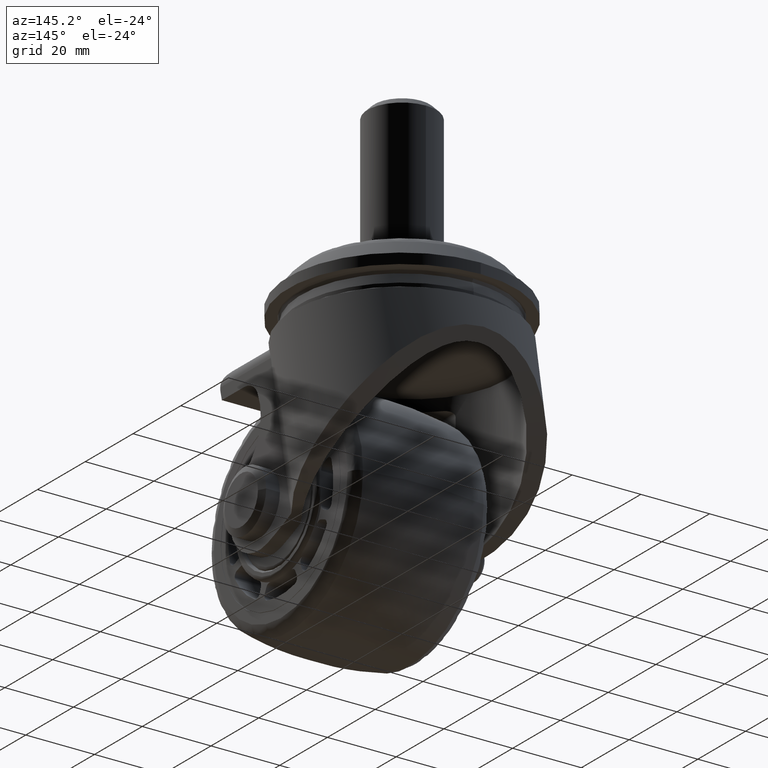
[diagram: clean part render]
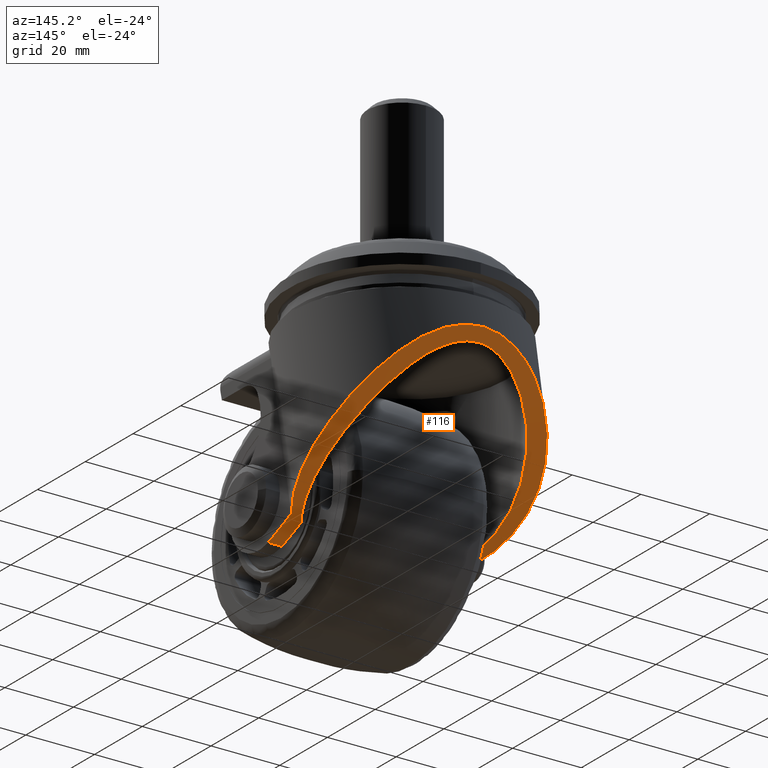
[diagram: same view with one face highlighted and labeled with its STEP entity id]
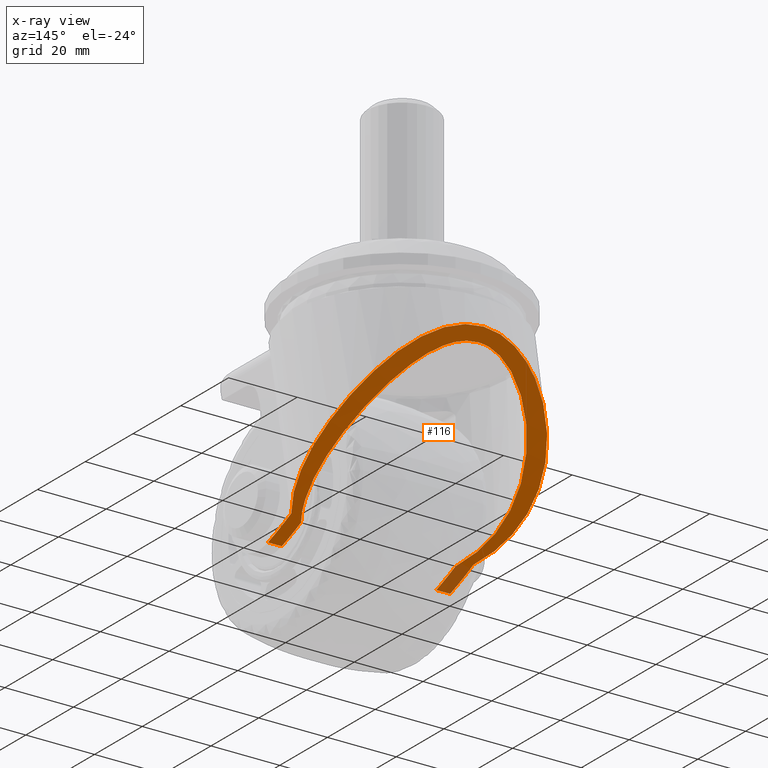
[diagram: x-ray of the same camera — body ghosted, the highlighted face saturated]
A machine part, auxiliary view. The second image highlights one B-rep face of the part: STEP entity #116.
The next image is the same camera in x-ray: the body ghosted, the highlighted face saturated — about 4% of this face is hidden behind the body in this view.
In plain terms, the highlighted cylindrical surface (partial cylindrical patch) has radius 95 mm, axis along (1, 0, 0).
Its self-contained STEP definition (entity closure, byte-faithful):
#116=ADVANCED_FACE('',(#363),#362,.T.);
#362=CYLINDRICAL_SURFACE('',#2478,9.50000000000E+01);
#363=FACE_OUTER_BOUND('',#2479,.T.);
#2475=CARTESIAN_POINT('',(3.70000000000E+01,2.08130000000E+01,4.94970000000E+01));
#2476=DIRECTION('',(1.00000000000E+00,-0.00000000000E+00,-0.00000000000E+00));
#2477=DIRECTION('',(-0.00000000000E+00,-0.00000000000E+00,-1.00000000000E+00));
#2478=AXIS2_PLACEMENT_3D('',#2475,#2476,#2477);
#2479=EDGE_LOOP('',(#4270,#4271,#4272,#4273,#4274,#4275,#4276,#4277,#4278));
#4270=ORIENTED_EDGE('',*,*,#5343,.F.);
#4271=ORIENTED_EDGE('',*,*,#5344,.F.);
#4272=ORIENTED_EDGE('',*,*,#5345,.T.);
#4273=ORIENTED_EDGE('',*,*,#5346,.T.);
#4274=ORIENTED_EDGE('',*,*,#5347,.F.);
#4275=ORIENTED_EDGE('',*,*,#5348,.F.);
#4276=ORIENTED_EDGE('',*,*,#5349,.F.);
#4277=ORIENTED_EDGE('',*,*,#5350,.T.);
#4278=ORIENTED_EDGE('',*,*,#5351,.T.);
#5343=EDGE_CURVE('',#6005,#6006,#6007,.T.);
#5344=EDGE_CURVE('',#6013,#6005,#6014,.T.);
#5345=EDGE_CURVE('',#6013,#6020,#6021,.T.);
#5346=EDGE_CURVE('',#6020,#6027,#6028,.T.);
#5347=EDGE_CURVE('',#6034,#6027,#6035,.T.);
#5348=EDGE_CURVE('',#6041,#6034,#6042,.T.);
#5349=EDGE_CURVE('',#6048,#6041,#6049,.T.);
#5350=EDGE_CURVE('',#6048,#6055,#6056,.T.);
#5351=EDGE_CURVE('',#6055,#6006,#6062,.T.);
#6005=VERTEX_POINT('',#9553);
#6006=VERTEX_POINT('',#9554);
#6007=(BOUNDED_CURVE() B_SPLINE_CURVE(3,(#9555,#9556,#9557,#9558,#9559,#9560,#9561,#9562,#9563,#9564,#9565,#9566,#9567,#9568,#9569,#9570,#9571,#9572,#9573,#9574,#9575,#9576,#9577,#9578,#9579,#9580,#9581,#9582,#9583,#9584,#9585,#9586,#9587,#9588,#9589,#9590,#9591,#9592,#9593,#9594,#9595,#9596,#9597,#9598,#9599,#9600),.UNSPECIFIED.,.F.,.F.) B_SPLINE_CURVE_WITH_KNOTS((4,2,2,2,2,2,2,2,2,2,2,2,2,2,2,2,2,2,2,2,2,2,4),(8.19537117906E-02,8.41274817485E-02,8.52191444382E-02,8.63108071279E-02,9.06774578865E-02,9.28607832658E-02,9.50441086451E-02,9.94107594038E-02,1.01594084783E-01,1.03777410162E-01,1.08144060921E-01,1.12510711680E-01,1.14694037059E-01,1.16877362438E-01,1.25610663956E-01,1.29977314714E-01,1.32160640093E-01,1.34343965473E-01,1.38710616231E-01,1.43077266990E-01,1.45260592369E-01,1.47443917749E-01,1.51810568507E-01),.UNSPECIFIED.) CURVE() GEOMETRIC_REPRESENTATION_ITEM() RATIONAL_B_SPLINE_CURVE((1.00000000000E+00,1.00000000000E+00,1.00000000000E+00,1.00000000000E+00,1.00000000000E+00,1.00000000000E+00,1.00000000000E+00,1.00000000000E+00,1.00000000000E+00,1.00000000000E+00,1.00000000000E+00,1.00000000000E+00,1.00000000000E+00,1.00000000000E+00,1.00000000000E+00,1.00000000000E+00,1.00000000000E+00,1.00000000000E+00,1.00000000000E+00,1.00000000000E+00,1.00000000000E+00,1.00000000000E+00,1.00000000000E+00,1.00000000000E+00,1.00000000000E+00,1.00000000000E+00,1.00000000000E+00,1.00000000000E+00,1.00000000000E+00,1.00000000000E+00,1.00000000000E+00,1.00000000000E+00,1.00000000000E+00,1.00000000000E+00,1.00000000000E+00,1.00000000000E+00,1.00000000000E+00,1.00000000000E+00,1.00000000000E+00,1.00000000000E+00,1.00000000000E+00,1.00000000000E+00,1.00000000000E+00,1.00000000000E+00,1.00000000000E+00,1.00000000000E+00)) REPRESENTATION_ITEM('') );
#6013=VERTEX_POINT('',#9601);
#6014=(BOUNDED_CURVE() B_SPLINE_CURVE(3,(#9602,#9603,#9604,#9605,#9606,#9607,#9608,#9609,#9610,#9611,#9612,#9613,#9614,#9615,#9616),.UNSPECIFIED.,.F.,.F.) B_SPLINE_CURVE_WITH_KNOTS((4,1,1,1,1,1,1,1,1,1,1,1,4),(0.00000000000E+00,7.76525669866E-02,1.64369601471E-01,2.51379599856E-01,3.02562471461E-01,4.21601785054E-01,4.95559990857E-01,6.48452473978E-01,7.48669312098E-01,8.08179493794E-01,8.52788639289E-01,9.20970964297E-01,1.00000000000E+00),.UNSPECIFIED.) CURVE() GEOMETRIC_REPRESENTATION_ITEM() RATIONAL_B_SPLINE_CURVE((1.00000000000E+00,1.00000000000E+00,1.00000000000E+00,1.00000000000E+00,1.00000000000E+00,1.00000000000E+00,1.00000000000E+00,1.00000000000E+00,1.00000000000E+00,1.00000000000E+00,1.00000000000E+00,1.00000000000E+00,1.00000000000E+00,1.00000000000E+00,1.00000000000E+00)) REPRESENTATION_ITEM('') );
#6020=VERTEX_POINT('',#9617);
#6021=CIRCLE('',#9621,9.50000000000E+01);
#6027=VERTEX_POINT('',#9622);
#6028=LINE('',#9623,#9624);
#6034=VERTEX_POINT('',#9626);
#6035=CIRCLE('',#9630,9.50000000000E+01);
#6041=VERTEX_POINT('',#9631);
#6042=(BOUNDED_CURVE() B_SPLINE_CURVE(3,(#9632,#9633,#9634,#9635,#9636,#9637,#9638,#9639,#9640,#9641,#9642,#9643,#9644,#9645,#9646,#9647,#9648,#9649,#9650,#9651,#9652,#9653,#9654,#9655,#9656,#9657,#9658,#9659,#9660,#9661,#9662,#9663,#9664,#9665,#9666,#9667,#9668,#9669,#9670,#9671,#9672,#9673,#9674,#9675,#9676,#9677,#9678,#9679,#9680,#9681,#9682,#9683,#9684,#9685,#9686,#9687,#9688,#9689,#9690,#9691,#9692,#9693,#9694,#9695,#9696,#9697,#9698,#9699,#9700,#9701,#9702,#9703,#9704,#9705,#9706,#9707,#9708,#9709,#9710,#9711,#9712,#9713,#9714,#9715,#9716,#9717,#9718,#9719,#9720,#9721,#9722,#9723,#9724,#9725,#9726,#9727),.UNSPECIFIED.,.F.,.F.) B_SPLINE_CURVE_WITH_KNOTS((4,2,2,2,2,2,2,2,2,2,2,2,2,2,2,2,2,2,2,2,2,2,2,2,2,2,2,2,2,2,2,2,2,2,2,2,2,2,2,2,2,2,2,2,2,2,2,4),(-7.53326061546E-02,-7.29757780355E-02,-7.06189499165E-02,-6.59052936784E-02,-6.35484655593E-02,-6.11916374403E-02,-5.64779812022E-02,-5.41211530832E-02,-5.17643249641E-02,-4.70506687260E-02,-4.23370124880E-02,-3.99801843689E-02,-3.76233562499E-02,-3.29097000118E-02,-2.81960437737E-02,-2.58392156547E-02,-2.34823875356E-02,-1.87687312975E-02,-1.64119031785E-02,-1.40550750594E-02,-9.34141882135E-03,-6.98459070231E-03,-5.80617664279E-03,-4.62776258326E-03,-2.27093446422E-03,8.58936548219E-05,4.79954989291E-03,7.15637801195E-03,9.51320613100E-03,1.42268623691E-02,1.65836904881E-02,1.89405186072E-02,2.36541748453E-02,2.83678310833E-02,3.07246592024E-02,3.30814873214E-02,3.77951435595E-02,4.25087997976E-02,4.48656279166E-02,4.72224560357E-02,5.19361122738E-02,5.66497685119E-02,5.90065966309E-02,6.13634247499E-02,6.60770809880E-02,6.84339091071E-02,7.07907372261E-02,7.55043934642E-02),.UNSPECIFIED.) CURVE() GEOMETRIC_REPRESENTATION_ITEM() RATIONAL_B_SPLINE_CURVE((1.00000000000E+00,1.00000000000E+00,1.00000000000E+00,1.00000000000E+00,1.00000000000E+00,1.00000000000E+00,1.00000000000E+00,1.00000000000E+00,1.00000000000E+00,1.00000000000E+00,1.00000000000E+00,1.00000000000E+00,1.00000000000E+00,1.00000000000E+00,1.00000000000E+00,1.00000000000E+00,1.00000000000E+00,1.00000000000E+00,1.00000000000E+00,1.00000000000E+00,1.00000000000E+00,1.00000000000E+00,1.00000000000E+00,1.00000000000E+00,1.00000000000E+00,1.00000000000E+00,1.00000000000E+00,1.00000000000E+00,1.00000000000E+00,1.00000000000E+00,1.00000000000E+00,1.00000000000E+00,1.00000000000E+00,1.00000000000E+00,1.00000000000E+00,1.00000000000E+00,1.00000000000E+00,1.00000000000E+00,1.00000000000E+00,1.00000000000E+00,1.00000000000E+00,1.00000000000E+00,1.00000000000E+00,1.00000000000E+00,1.00000000000E+00,1.00000000000E+00,1.00000000000E+00,1.00000000000E+00,1.00000000000E+00,1.00000000000E+00,1.00000000000E+00,1.00000000000E+00,1.00000000000E+00,1.00000000000E+00,1.00000000000E+00,1.00000000000E+00,1.00000000000E+00,1.00000000000E+00,1.00000000000E+00,1.00000000000E+00,1.00000000000E+00,1.00000000000E+00,1.00000000000E+00,1.00000000000E+00,1.00000000000E+00,1.00000000000E+00,1.00000000000E+00,1.00000000000E+00,1.00000000000E+00,1.00000000000E+00,1.00000000000E+00,1.00000000000E+00,1.00000000000E+00,1.00000000000E+00,1.00000000000E+00,1.00000000000E+00,1.00000000000E+00,1.00000000000E+00,1.00000000000E+00,1.00000000000E+00,1.00000000000E+00,1.00000000000E+00,1.00000000000E+00,1.00000000000E+00,1.00000000000E+00,1.00000000000E+00,1.00000000000E+00,1.00000000000E+00,1.00000000000E+00,1.00000000000E+00,1.00000000000E+00,1.00000000000E+00,1.00000000000E+00,1.00000000000E+00,1.00000000000E+00,1.00000000000E+00)) REPRESENTATION_ITEM('') );
#6048=VERTEX_POINT('',#9728);
#6049=CIRCLE('',#9732,9.50000000000E+01);
#6055=VERTEX_POINT('',#9733);
#6056=LINE('',#9734,#9735);
#6062=CIRCLE('',#9740,9.50000000000E+01);
#9553=CARTESIAN_POINT('',(5.74233655132E-08,-2.80054315004E+01,-3.19999995224E+01));
#9554=CARTESIAN_POINT('',(2.25000000000E+01,-6.55527449560E+01,9.92481155660E+00));
#9555=CARTESIAN_POINT('',(5.74233655132E-08,-2.80054315004E+01,-3.19999995224E+01));
#9556=CARTESIAN_POINT('',(7.39288560048E-01,-2.80058076081E+01,-3.19997730890E+01));
#9557=CARTESIAN_POINT('',(1.46607875171E+00,-2.80557461795E+01,-3.19699175471E+01));
#9558=CARTESIAN_POINT('',(2.55022035450E+00,-2.82023471807E+01,-3.18817379645E+01));
#9559=CARTESIAN_POINT('',(2.91059338669E+00,-2.82631607981E+01,-3.18451024096E+01));
#9560=CARTESIAN_POINT('',(3.62935523388E+00,-2.84082194051E+01,-3.17574075320E+01));
#9561=CARTESIAN_POINT('',(3.98895468368E+00,-2.84928617904E+01,-3.17061047036E+01));
#9562=CARTESIAN_POINT('',(5.75306546768E+00,-2.89649837936E+01,-3.14186836212E+01));
#9563=CARTESIAN_POINT('',(7.07658666360E+00,-2.94995587557E+01,-3.10897711892E+01));
#9564=CARTESIAN_POINT('',(8.96623531064E+00,-3.04647356370E+01,-3.04763652084E+01));
#9565=CARTESIAN_POINT('',(9.58176946282E+00,-3.08155037890E+01,-3.02506656105E+01));
#9566=CARTESIAN_POINT('',(1.07628397132E+01,-3.15500396332E+01,-2.97702987693E+01));
#9567=CARTESIAN_POINT('',(1.13312510187E+01,-3.19350826938E+01,-2.95148453998E+01));
#9568=CARTESIAN_POINT('',(1.29807107677E+01,-3.31326377134E+01,-2.87065545044E+01));
#9569=CARTESIAN_POINT('',(1.40066195266E+01,-3.39869880461E+01,-2.81121122195E+01));
#9570=CARTESIAN_POINT('',(1.54595715752E+01,-3.53253720107E+01,-2.71436317519E+01));
#9571=CARTESIAN_POINT('',(1.59302514673E+01,-3.57820480417E+01,-2.68072308842E+01));
#9572=CARTESIAN_POINT('',(1.68409534618E+01,-3.67077424923E+01,-2.61118572643E+01));
#9573=CARTESIAN_POINT('',(1.72792142588E+01,-3.71748677658E+01,-2.57543335557E+01));
#9574=CARTESIAN_POINT('',(1.85477632712E+01,-3.85858409625E+01,-2.46528599599E+01));
#9575=CARTESIAN_POINT('',(1.93321757595E+01,-3.95391177414E+01,-2.38801218651E+01));
#9576=CARTESIAN_POINT('',(2.07934730041E+01,-4.14594877500E+01,-2.22575636074E+01));
#9577=CARTESIAN_POINT('',(2.14702169576E+01,-4.24266670050E+01,-2.14077212825E+01));
#9578=CARTESIAN_POINT('',(2.24080764664E+01,-4.38828060987E+01,-2.00722922129E+01));
#9579=CARTESIAN_POINT('',(2.27077538281E+01,-4.43691086558E+01,-1.96170130268E+01));
#9580=CARTESIAN_POINT('',(2.32810867900E+01,-4.53429862977E+01,-1.86853992132E+01));
#9581=CARTESIAN_POINT('',(2.35551908863E+01,-4.58314104517E+01,-1.82082149003E+01));
#9582=CARTESIAN_POINT('',(2.48540627796E+01,-4.82660219876E+01,-1.57767759562E+01));
#9583=CARTESIAN_POINT('',(2.56530067018E+01,-5.01593509986E+01,-1.37173198610E+01));
#9584=CARTESIAN_POINT('',(2.64700963604E+01,-5.29060923465E+01,-1.04406895955E+01));
#9585=CARTESIAN_POINT('',(2.66781095183E+01,-5.38062050800E+01,-9.31707791735E+00));
#9586=CARTESIAN_POINT('',(2.68827069108E+01,-5.51321943142E+01,-7.58064748643E+00));
#9587=CARTESIAN_POINT('',(2.69329388093E+01,-5.55701632116E+01,-6.99331940133E+00));
#9588=CARTESIAN_POINT('',(2.69947277930E+01,-5.64379134101E+01,-5.80074123391E+00));
#9589=CARTESIAN_POINT('',(2.70059716990E+01,-5.68637161744E+01,-5.20094012156E+00));
#9590=CARTESIAN_POINT('',(2.69791052384E+01,-5.81154211561E+01,-3.39394336961E+00));
#9591=CARTESIAN_POINT('',(2.68807312352E+01,-5.89164478140E+01,-2.17802379908E+00));
#9592=CARTESIAN_POINT('',(2.65089717685E+01,-6.04529675495E+01,2.73677767489E-01));
#9593=CARTESIAN_POINT('',(2.62357244081E+01,-6.11884601072E+01,1.50947755655E+00));
#9594=CARTESIAN_POINT('',(2.56763279910E+01,-6.22430723190E+01,3.37542919594E+00));
#9595=CARTESIAN_POINT('',(2.54658360756E+01,-6.25842393075E+01,3.99554455731E+00));
#9596=CARTESIAN_POINT('',(2.49999148361E+01,-6.32403284977E+01,5.21924102360E+00));
#9597=CARTESIAN_POINT('',(2.47439530865E+01,-6.35562861233E+01,5.82464757267E+00));
#9598=CARTESIAN_POINT('',(2.39056742234E+01,-6.44695736716E+01,7.61996741714E+00));
#9599=CARTESIAN_POINT('',(2.32533200138E+01,-6.50323875829E+01,8.78913890526E+00));
#9600=CARTESIAN_POINT('',(2.25000000000E+01,-6.55527449560E+01,9.92481155660E+00));
#9601=CARTESIAN_POINT('',(-2.24999997488E+01,-6.55527434823E+01,9.92480871910E+00));
#9602=CARTESIAN_POINT('',(-2.24999997488E+01,-6.55527434823E+01,9.92480871910E+00));
#9603=CARTESIAN_POINT('',(-2.34379741488E+01,-6.49057165338E+01,8.51130127545E+00));
#9604=CARTESIAN_POINT('',(-2.51054477286E+01,-6.33816288626E+01,5.38291420453E+00));
#9605=CARTESIAN_POINT('',(-2.66296532549E+01,-6.05892996548E+01,3.95799216465E-01));
#9606=CARTESIAN_POINT('',(-2.70818734185E+01,-5.77269943027E+01,-4.02379538753E+00));
#9607=CARTESIAN_POINT('',(-2.68680148876E+01,-5.42037918559E+01,-8.89774112942E+00));
#9608=CARTESIAN_POINT('',(-2.58775670544E+01,-5.05995632542E+01,-1.32706959900E+01));
#9609=CARTESIAN_POINT('',(-2.34289472863E+01,-4.52955299246E+01,-1.88716731376E+01));
#9610=CARTESIAN_POINT('',(-2.00427197139E+01,-4.01361493940E+01,-2.35060460253E+01));
#9611=CARTESIAN_POINT('',(-1.57186448035E+01,-3.54272669172E+01,-2.71060359113E+01));
#9612=CARTESIAN_POINT('',(-1.23694484298E+01,-3.26193128777E+01,-2.90648552235E+01));
#9613=CARTESIAN_POINT('',(-9.22333888362E+00,-3.05141706175E+01,-3.04551157657E+01));
#9614=CARTESIAN_POINT('',(-5.27677939570E+00,-2.86267431809E+01,-3.16324587016E+01));
#9615=CARTESIAN_POINT('',(-1.85205459732E+00,-2.79999477601E+01,-3.20024648868E+01));
#9616=CARTESIAN_POINT('',(5.74233655132E-08,-2.80054315004E+01,-3.19999995224E+01));
#9617=CARTESIAN_POINT('',(-2.25000000000E+01,-6.88081607692E+01,1.79843431398E+01));
#9618=CARTESIAN_POINT('',(-2.25000000000E+01,2.08130000000E+01,4.94970000000E+01));
#9619=DIRECTION('',(-1.00000000000E+00,-0.00000000000E+00,-0.00000000000E+00));
#9620=DIRECTION('',(-0.00000000000E+00,-0.00000000000E+00,1.00000000000E+00));
#9621=AXIS2_PLACEMENT_3D('',#9618,#9619,#9620);
#9622=CARTESIAN_POINT('',(-2.65000000000E+01,-6.88081607692E+01,1.79843431398E+01));
#9623=CARTESIAN_POINT('',(-2.25000000000E+01,-6.88081607692E+01,1.79843431398E+01));
#9624=VECTOR('',#9625,4.00000000000E+00);
#9625=DIRECTION('',(-1.00000000000E+00,0.00000000000E+00,0.00000000000E+00));
#9626=CARTESIAN_POINT('',(-2.65000000000E+01,-6.47714572825E+01,8.26229772553E+00));
#9627=CARTESIAN_POINT('',(-2.65000000000E+01,2.08130000000E+01,4.94970000000E+01));
#9628=DIRECTION('',(-1.00000000000E+00,-0.00000000000E+00,-0.00000000000E+00));
#9629=DIRECTION('',(-0.00000000000E+00,-0.00000000000E+00,1.00000000000E+00));
#9630=AXIS2_PLACEMENT_3D('',#9627,#9628,#9629);
#9631=CARTESIAN_POINT('',(2.65000000000E+01,-6.47714572825E+01,8.26229772553E+00));
#9632=CARTESIAN_POINT('',(2.65000000000E+01,-6.47714572825E+01,8.26229772553E+00));
#9633=CARTESIAN_POINT('',(2.69243488000E+01,-6.44816910674E+01,7.66087506723E+00));
#9634=CARTESIAN_POINT('',(2.73261332012E+01,-6.41770343502E+01,7.04480663859E+00));
#9635=CARTESIAN_POINT('',(2.80794765510E+01,-6.35391736050E+01,5.79110259304E+00));
#9636=CARTESIAN_POINT('',(2.84277184076E+01,-6.32089107389E+01,5.15920320056E+00));
#9637=CARTESIAN_POINT('',(2.93910011064E+01,-6.21830848328E+01,3.25052187028E+00));
#9638=CARTESIAN_POINT('',(2.99249327369E+01,-6.14525519521E+01,1.96085360958E+00));
#9639=CARTESIAN_POINT('',(3.05718184254E+01,-6.02814751305E+01,6.97407336206E-03));
#9640=CARTESIAN_POINT('',(3.07616902861E+01,-5.98785537847E+01,-6.47575138554E-01));
#9641=CARTESIAN_POINT('',(3.10903287655E+01,-5.90464818012E+01,-1.96238626195E+00));
#9642=CARTESIAN_POINT('',(3.12288709125E+01,-5.86171146591E+01,-2.62280103910E+00));
#9643=CARTESIAN_POINT('',(3.15639334757E+01,-5.73083201564E+01,-4.58189086763E+00));
#9644=CARTESIAN_POINT('',(3.16830581621E+01,-5.64019387611E+01,-5.86853097045E+00));
#9645=CARTESIAN_POINT('',(3.17184367500E+01,-5.49912711492E+01,-7.76847539677E+00));
#9646=CARTESIAN_POINT('',(3.17062517704E+01,-5.45125278179E+01,-8.39678870015E+00));
#9647=CARTESIAN_POINT('',(3.16350993813E+01,-5.35378861109E+01,-9.64327092954E+00));
#9648=CARTESIAN_POINT('',(3.15759783445E+01,-5.30410823955E+01,-1.02625361064E+01));
#9649=CARTESIAN_POINT('',(3.13303134792E+01,-5.15307110510E+01,-1.20976267126E+01));
#9650=CARTESIAN_POINT('',(3.10779559064E+01,-5.05080289082E+01,-1.32779016028E+01));
#9651=CARTESIAN_POINT('',(3.04121616592E+01,-4.84332686977E+01,-1.55593733020E+01));
#9652=CARTESIAN_POINT('',(2.99986581518E+01,-4.73811829606E+01,-1.66605414909E+01));
#9653=CARTESIAN_POINT('',(2.92620544966E+01,-4.57831332522E+01,-1.82563892680E+01));
#9654=CARTESIAN_POINT('',(2.89967213404E+01,-4.52465030153E+01,-1.87796053860E+01));
#9655=CARTESIAN_POINT('',(2.84284691042E+01,-4.41697783495E+01,-1.98051738450E+01));
#9656=CARTESIAN_POINT('',(2.81271618792E+01,-4.36326496718E+01,-2.03047361723E+01));
#9657=CARTESIAN_POINT('',(2.71731500872E+01,-4.20256901899E+01,-2.17658623642E+01));
#9658=CARTESIAN_POINT('',(2.64706373922E+01,-4.09601857531E+01,-2.26899874215E+01));
#9659=CARTESIAN_POINT('',(2.49333982422E+01,-3.88468191934E+01,-2.44461782174E+01));
#9660=CARTESIAN_POINT('',(2.40987325240E+01,-3.77989033912E+01,-2.52782320691E+01));
#9661=CARTESIAN_POINT('',(2.27408736741E+01,-3.62476155071E+01,-2.64602827021E+01));
#9662=CARTESIAN_POINT('',(2.22692585364E+01,-3.57326843093E+01,-2.68442089008E+01));
#9663=CARTESIAN_POINT('',(2.12947629331E+01,-3.47182088242E+01,-2.75852900345E+01));
#9664=CARTESIAN_POINT('',(2.07928523840E+01,-3.42195383905E+01,-2.79418573958E+01));
#9665=CARTESIAN_POINT('',(1.92414631445E+01,-3.27521019942E+01,-2.89708756831E+01));
#9666=CARTESIAN_POINT('',(1.81467636686E+01,-3.18115260374E+01,-2.96028659103E+01));
#9667=CARTESIAN_POINT('',(1.64006405546E+01,-3.04744444919E+01,-3.04709962198E+01));
#9668=CARTESIAN_POINT('',(1.58011556589E+01,-3.00411328957E+01,-3.07470116478E+01));
#9669=CARTESIAN_POINT('',(1.45635200645E+01,-2.92035202207E+01,-3.12717559822E+01));
#9670=CARTESIAN_POINT('',(1.39235881377E+01,-2.87981635942E+01,-3.15211202571E+01));
#9671=CARTESIAN_POINT('',(1.19501399784E+01,-2.76410746719E+01,-3.22221293417E+01));
#9672=CARTESIAN_POINT('',(1.05797516779E+01,-2.69567800738E+01,-3.26217322350E+01));
#9673=CARTESIAN_POINT('',(8.42609499541E+00,-2.60951552092E+01,-3.31149512717E+01));
#9674=CARTESIAN_POINT('',(7.69177349669E+00,-2.58355673036E+01,-3.32615610634E+01));
#9675=CARTESIAN_POINT('',(6.56259743398E+00,-2.54936385744E+01,-3.34530590062E+01));
#9676=CARTESIAN_POINT('',(6.18049299568E+00,-2.53873284081E+01,-3.35122884157E+01));
#9677=CARTESIAN_POINT('',(5.41289281995E+00,-2.51933231148E+01,-3.36199690361E+01));
#9678=CARTESIAN_POINT('',(5.02745076768E+00,-2.51055744473E+01,-3.36684526031E+01));
#9679=CARTESIAN_POINT('',(3.86610760024E+00,-2.48707575896E+01,-3.37978151828E+01));
#9680=CARTESIAN_POINT('',(3.08519377388E+00,-2.47521043971E+01,-3.38626384327E+01));
#9681=CARTESIAN_POINT('',(1.50940786236E+00,-2.45944852537E+01,-3.39486010900E+01));
#9682=CARTESIAN_POINT('',(7.13362044322E-01,-2.45555249706E+01,-3.39697416045E+01));
#9683=CARTESIAN_POINT('',(-1.68956062065E+00,-2.45646893890E+01,-3.39647598309E+01));
#9684=CARTESIAN_POINT('',(-3.25293448681E+00,-2.47377354459E+01,-3.38712371015E+01));
#9685=CARTESIAN_POINT('',(-5.54698877424E+00,-2.52158031983E+01,-3.36076472250E+01));
#9686=CARTESIAN_POINT('',(-6.30314224644E+00,-2.54116633988E+01,-3.34990850758E+01));
#9687=CARTESIAN_POINT('',(-7.79919909953E+00,-2.58720586371E+01,-3.32409897284E+01));
#9688=CARTESIAN_POINT('',(-8.54184910620E+00,-2.61380063166E+01,-3.30906271606E+01));
#9689=CARTESIAN_POINT('',(-1.07019909456E+01,-2.70135288911E+01,-3.25887828791E+01));
#9690=CARTESIAN_POINT('',(-1.20663012637E+01,-2.77031688309E+01,-3.21852701683E+01));
#9691=CARTESIAN_POINT('',(-1.40209411506E+01,-2.88586251472E+01,-3.14840634019E+01));
#9692=CARTESIAN_POINT('',(-1.46573991571E+01,-2.92643884467E+01,-3.12340665941E+01));
#9693=CARTESIAN_POINT('',(-1.59002307776E+01,-3.01113019346E+01,-3.07025350332E+01));
#9694=CARTESIAN_POINT('',(-1.65006770667E+01,-3.05483455565E+01,-3.04235755420E+01));
#9695=CARTESIAN_POINT('',(-1.82459298675E+01,-3.18936236142E+01,-2.95482824434E+01));
#9696=CARTESIAN_POINT('',(-1.93350974850E+01,-3.28356571727E+01,-2.89137324116E+01));
#9697=CARTESIAN_POINT('',(-2.13864942386E+01,-3.47865009921E+01,-2.75427096515E+01));
#9698=CARTESIAN_POINT('',(-2.23485493868E+01,-3.57954734329E+01,-2.68061979423E+01));
#9699=CARTESIAN_POINT('',(-2.37028662358E+01,-3.73488058569E+01,-2.56204324615E+01));
#9700=CARTESIAN_POINT('',(-2.41403612549E+01,-3.78745444526E+01,-2.52106025579E+01));
#9701=CARTESIAN_POINT('',(-2.49778860593E+01,-3.89280422955E+01,-2.43708659450E+01));
#9702=CARTESIAN_POINT('',(-2.53787207387E+01,-3.94566158755E+01,-2.39403807663E+01));
#9703=CARTESIAN_POINT('',(-2.65291873355E+01,-4.10461451502E+01,-2.26164392999E+01));
#9704=CARTESIAN_POINT('',(-2.72270639902E+01,-4.21108242150E+01,-2.16906008632E+01));
#9705=CARTESIAN_POINT('',(-2.84863870051E+01,-4.42438612236E+01,-1.97466782547E+01));
#9706=CARTESIAN_POINT('',(-2.90478368684E+01,-4.53122447398E+01,-1.87286252476E+01));
#9707=CARTESIAN_POINT('',(-2.97821100785E+01,-4.69147469661E+01,-1.71252430873E+01));
#9708=CARTESIAN_POINT('',(-3.00084427389E+01,-4.74484383318E+01,-1.65784058997E+01));
#9709=CARTESIAN_POINT('',(-3.04185294708E+01,-4.85018921886E+01,-1.54724462715E+01));
#9710=CARTESIAN_POINT('',(-3.06030863986E+01,-4.90233452940E+01,-1.49116535177E+01));
#9711=CARTESIAN_POINT('',(-3.10948724250E+01,-5.05715634477E+01,-1.32054974729E+01));
#9712=CARTESIAN_POINT('',(-3.13405056304E+01,-5.15821832265E+01,-1.20364005857E+01));
#9713=CARTESIAN_POINT('',(-3.16583105040E+01,-5.35588371056E+01,-9.63211116850E+00));
#9714=CARTESIAN_POINT('',(-3.17305737111E+01,-5.45248746231E+01,-8.39693660867E+00));
#9715=CARTESIAN_POINT('',(-3.16944355680E+01,-5.59394189696E+01,-6.49132016152E+00));
#9716=CARTESIAN_POINT('',(-3.16579171441E+01,-5.64070210833E+01,-5.84464918568E+00));
#9717=CARTESIAN_POINT('',(-3.15342963410E+01,-5.73207858300E+01,-4.54688311882E+00));
#9718=CARTESIAN_POINT('',(-3.14475532493E+01,-5.77661048082E+01,-3.89715323189E+00));
#9719=CARTESIAN_POINT('',(-3.11116556029E+01,-5.90683746238E+01,-1.94628173291E+00));
#9720=CARTESIAN_POINT('',(-3.07871754379E+01,-5.98916820764E+01,-6.43397158942E-01));
#9721=CARTESIAN_POINT('',(-3.01403927318E+01,-6.10624610037E+01,1.31001867188E+00));
#9722=CARTESIAN_POINT('',(-2.98980402084E+01,-6.14420122149E+01,1.96099161010E+00));
#9723=CARTESIAN_POINT('',(-2.93571436584E+01,-6.21800901065E+01,3.26166586368E+00));
#9724=CARTESIAN_POINT('',(-2.90577302362E+01,-6.25391668922E+01,3.91255654797E+00));
#9725=CARTESIAN_POINT('',(-2.80884452621E+01,-6.35677871817E+01,5.82797669526E+00));
#9726=CARTESIAN_POINT('',(-2.73438110954E+01,-6.41952615977E+01,7.06637797234E+00));
#9727=CARTESIAN_POINT('',(-2.65000000000E+01,-6.47714572825E+01,8.26229772553E+00));
#9728=CARTESIAN_POINT('',(2.65000000000E+01,-6.88081607692E+01,1.79843431398E+01));
#9729=CARTESIAN_POINT('',(2.65000000000E+01,2.08130000000E+01,4.94970000000E+01));
#9730=DIRECTION('',(1.00000000000E+00,0.00000000000E+00,-0.00000000000E+00));
#9731=DIRECTION('',(-0.00000000000E+00,-0.00000000000E+00,-1.00000000000E+00));
#9732=AXIS2_PLACEMENT_3D('',#9729,#9730,#9731);
#9733=CARTESIAN_POINT('',(2.25000000000E+01,-6.88081607692E+01,1.79843431398E+01));
#9734=CARTESIAN_POINT('',(2.65000000000E+01,-6.88081607692E+01,1.79843431398E+01));
#9735=VECTOR('',#9736,4.00000000000E+00);
#9736=DIRECTION('',(-1.00000000000E+00,0.00000000000E+00,0.00000000000E+00));
#9737=CARTESIAN_POINT('',(2.25000000000E+01,2.08130000000E+01,4.94970000000E+01));
#9738=DIRECTION('',(1.00000000000E+00,0.00000000000E+00,-0.00000000000E+00));
#9739=DIRECTION('',(-0.00000000000E+00,-0.00000000000E+00,-1.00000000000E+00));
#9740=AXIS2_PLACEMENT_3D('',#9737,#9738,#9739);